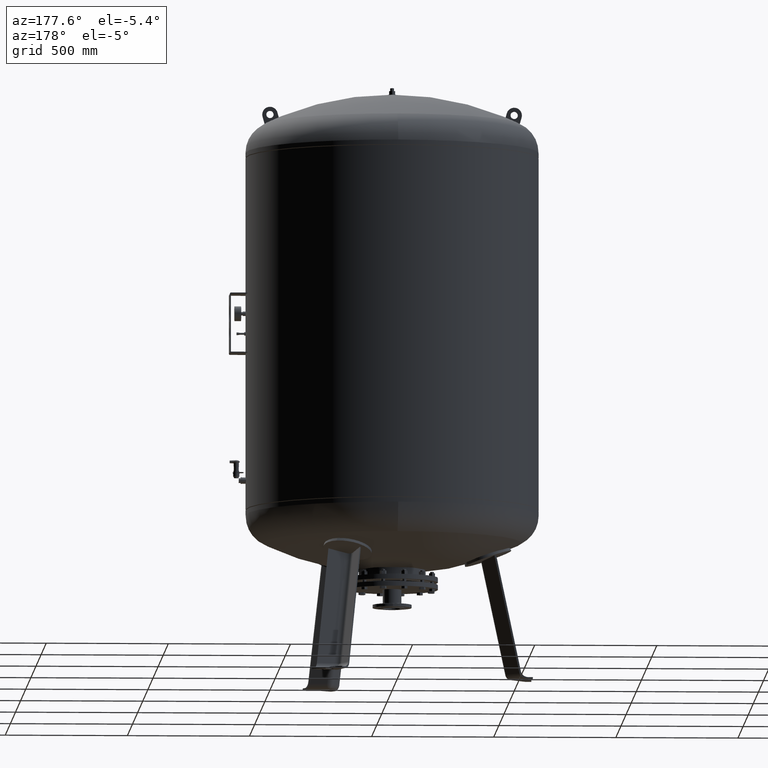
[diagram: clean part render]
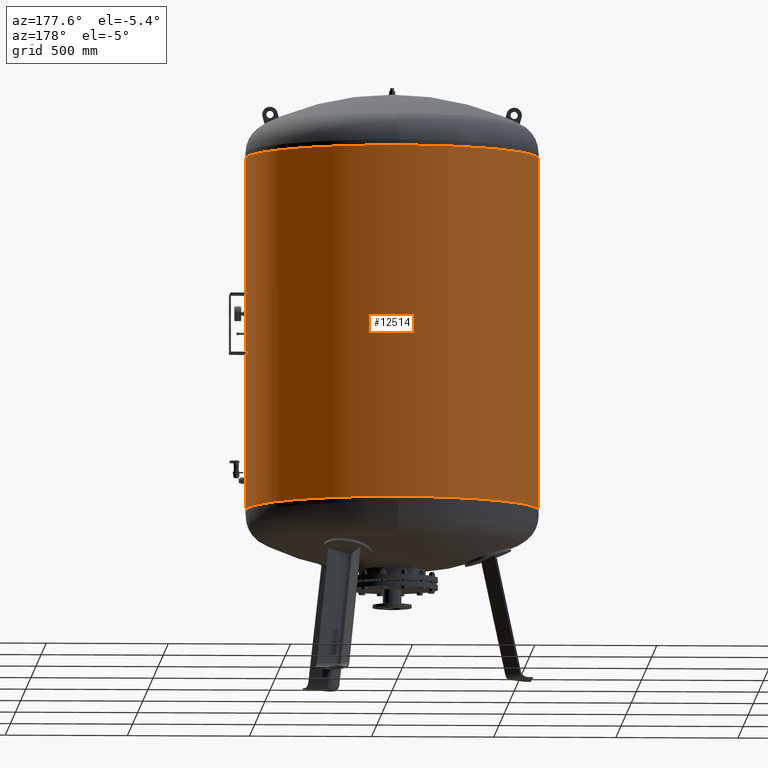
[diagram: same view with one face highlighted and labeled with its STEP entity id]
A machine part, auxiliary view. The second image highlights one B-rep face of the part: STEP entity #12514.
In plain terms, the highlighted cylindrical surface (partial cylindrical patch) has radius 600 mm, axis along (0, 0, 1).
Its self-contained STEP definition (entity closure, byte-faithful):
#12394=CARTESIAN_POINT('',(600.000000000000800,0.0,2141.0));
#12395=VERTEX_POINT('',#12394);
#12396=CARTESIAN_POINT('',(600.0,0.0,696.999999999999660));
#12397=VERTEX_POINT('',#12396);
#12398=CARTESIAN_POINT('',(600.000000000000800,0.0,2141.0));
#12399=DIRECTION('',(0.0,0.0,-1.0));
#12400=VECTOR('',#12399,1444.000000000000500);
#12401=LINE('',#12398,#12400);
#12402=EDGE_CURVE('',#12395,#12397,#12401,.T.);
#12404=CARTESIAN_POINT('',(-600.000000000000570,-7.347638E-014,2141.0));
#12405=VERTEX_POINT('',#12404);
#12413=CARTESIAN_POINT('',(-599.999999999999890,-7.347638E-014,696.999999999999660));
#12414=VERTEX_POINT('',#12413);
#12415=CARTESIAN_POINT('',(-600.000000000000570,-7.347638E-014,2141.0));
#12416=DIRECTION('',(0.0,0.0,-1.0));
#12417=VECTOR('',#12416,1444.000000000000500);
#12418=LINE('',#12415,#12417);
#12419=EDGE_CURVE('',#12405,#12414,#12418,.T.);
#12487=CARTESIAN_POINT('',(-1.661891E-014,0.0,696.999999999999550));
#12488=DIRECTION('',(0.0,0.0,1.0));
#12489=DIRECTION('',(1.0,0.0,0.0));
#12490=AXIS2_PLACEMENT_3D('',#12487,#12488,#12489);
#12491=CIRCLE('',#12490,600.0);
#12492=EDGE_CURVE('',#12397,#12414,#12491,.T.);
#12497=CARTESIAN_POINT('',(8.309455E-015,0.0,1780.0));
#12498=DIRECTION('',(2.301788E-017,0.0,1.0));
#12499=DIRECTION('',(1.0,0.0,0.0));
#12500=AXIS2_PLACEMENT_3D('',#12497,#12498,#12499);
#12501=CYLINDRICAL_SURFACE('',#12500,600.000000000000570);
#12502=ORIENTED_EDGE('',*,*,#12402,.T.);
#12503=ORIENTED_EDGE('',*,*,#12492,.T.);
#12504=ORIENTED_EDGE('',*,*,#12419,.F.);
#12505=CARTESIAN_POINT('',(1.661891E-014,0.0,2141.0));
#12506=DIRECTION('',(0.0,0.0,1.0));
#12507=DIRECTION('',(1.0,0.0,0.0));
#12508=AXIS2_PLACEMENT_3D('',#12505,#12506,#12507);
#12509=CIRCLE('',#12508,600.000000000000800);
#12510=EDGE_CURVE('',#12395,#12405,#12509,.T.);
#12511=ORIENTED_EDGE('',*,*,#12510,.F.);
#12512=EDGE_LOOP('',(#12502,#12503,#12504,#12511));
#12513=FACE_OUTER_BOUND('',#12512,.T.);
#12514=ADVANCED_FACE('',(#12513),#12501,.T.);